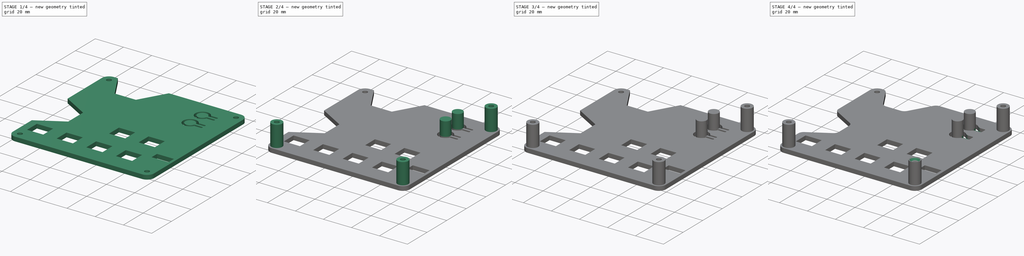
[diagram: build sequence overview — one tinted view per stage of 4, left to right]
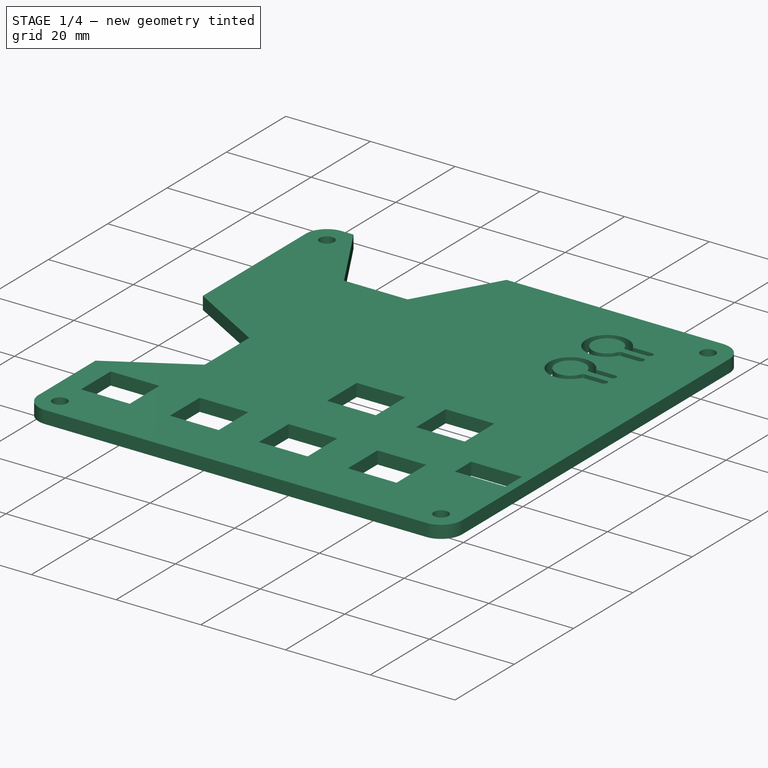
[diagram: stage 1 of 4 — iso view after this stage's code; geometry added in this stage tinted green]
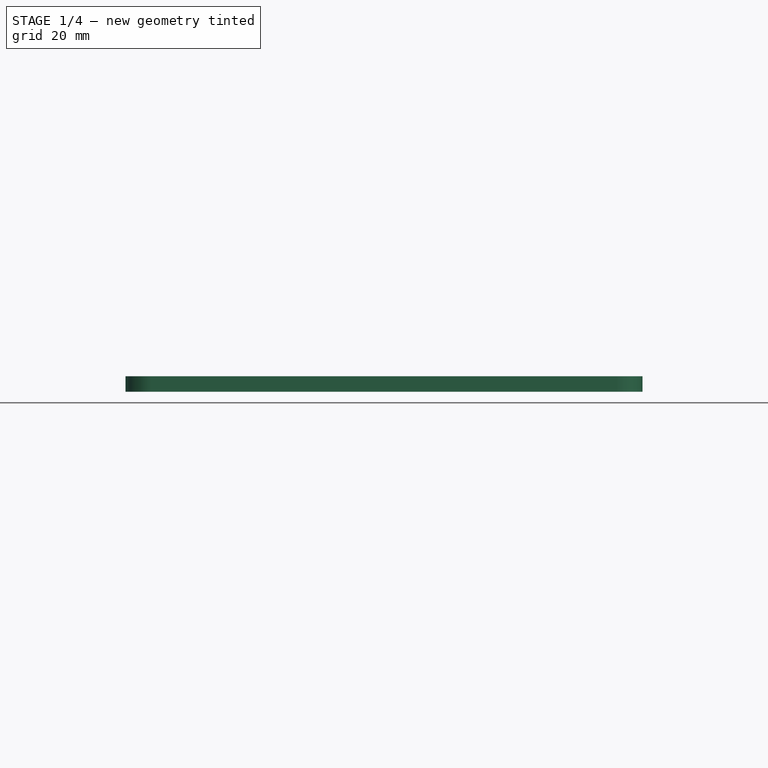
[diagram: stage 1 of 4 — front view after this stage's code; geometry added in this stage tinted green]
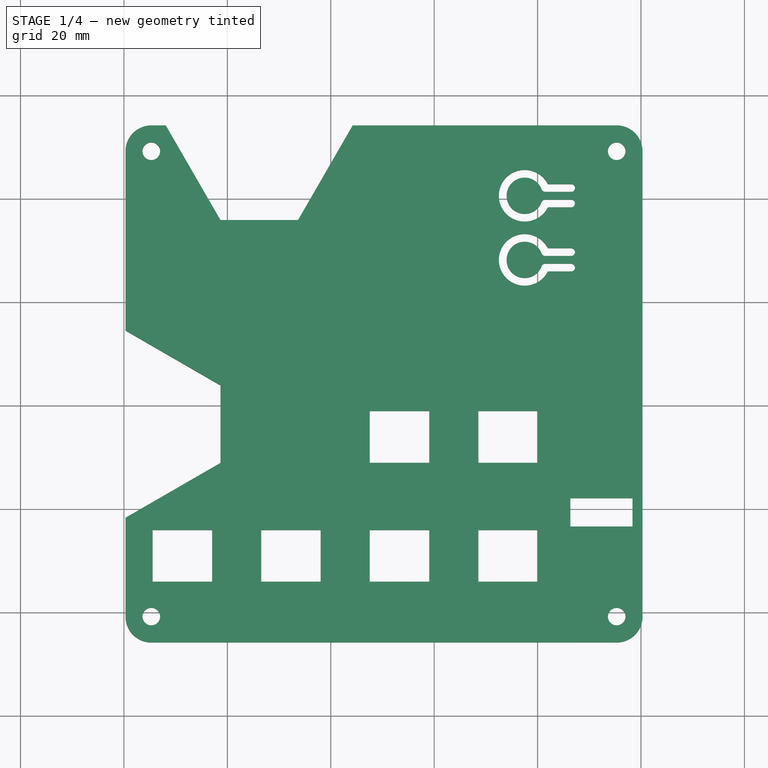
[diagram: stage 1 of 4 — top view after this stage's code; geometry added in this stage tinted green]
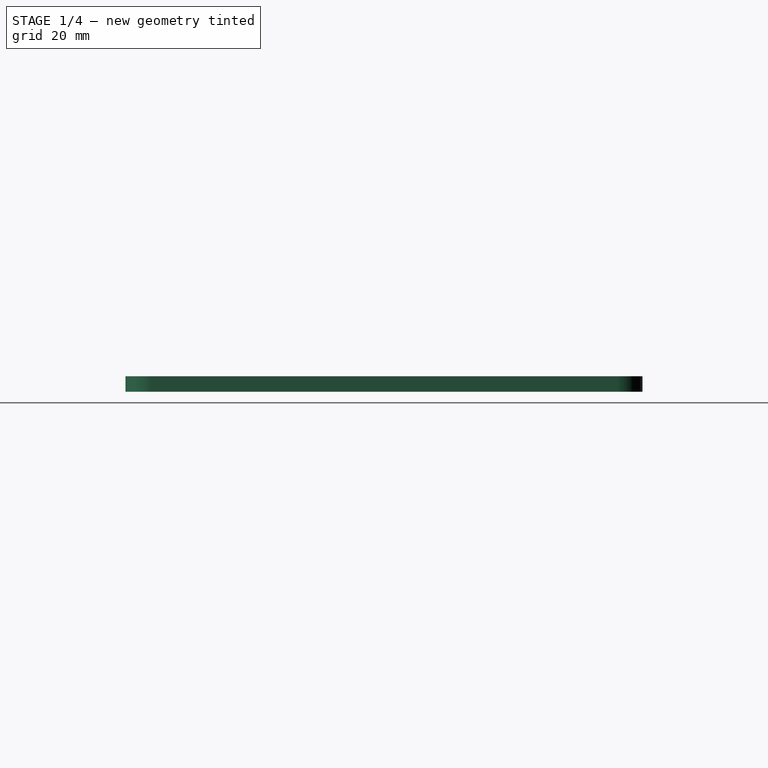
[diagram: stage 1 of 4 — right view after this stage's code; geometry added in this stage tinted green]
FCSTD DOCUMENT  (FreeCAD 0.20R29603 (Git))
Label: mobo-top-cover
License: All rights reserved
LicenseURL: http://en.wikipedia.org/wiki/All_rights_reserved
objects: PartDesign::Pocket×7, Sketcher::SketchObject×6, Part::Part2DObjectPython×5, PartDesign::Plane×3, PartDesign::Pad×3, PartDesign::ShapeBinder×1, PartDesign::Fillet×1, PartDesign::Chamfer×1, PartDesign::Body×1
note: 40 computed .brp shape members not serialized (recipe doc carries the construction recipe); baked Part::Feature solids carry a one-line shape summary decoded from their .brp

FEATURE [PartDesign::ShapeBinder] Copyb_OTS_0020_index_motherboard1_001_003  label="LumenPnP_motherboard1-reference002"
  Placement = pos=(-28.7282,-11.8301,10.999) rot=(1,0,0;3.14159rad)
  TraceSupport = false
FEATURE [PartDesign::Plane] DatumPlane005
  AttachmentOffset = pos=(0,0,15) rot=(0,0,1;0rad)
  Length = 203.827
  MapMode = 5
  Placement = pos=(-28.7282,-11.8301,-5.60096) rot=(1,0,0;3.14159rad)
  ResizeMode = 0
  Support = -> [Copyb_OTS_0020_index_motherboard1_001_003]
  Width = 214.007
FEATURE [Sketcher::SketchObject] Sketch024
  FullyConstrained = false
  MapMode = 5
  Support = -> [XY_Plane003]
  sketch-geometry (46):
    g0: LineSegment StartX=47.8677 StartY=154.594 StartZ=0 EndX=84.46 EndY=154.594 EndZ=0
    g1: LineSegment StartX=84.46 StartY=154.594 StartZ=0 EndX=73.6639 EndY=135.894 EndZ=0
    g2: LineSegment StartX=73.6639 StartY=135.894 StartZ=0 EndX=58.6639 EndY=135.894 EndZ=0
    g3: LineSegment StartX=58.6639 StartY=135.894 StartZ=0 EndX=47.8677 EndY=154.594 EndZ=0
    g4: LineSegment StartX=39.9644 StartY=114.715 StartZ=0 EndX=58.6639 EndY=103.918 EndZ=0
    g5: LineSegment StartX=58.6639 StartY=103.918 StartZ=0 EndX=58.6639 EndY=88.9183 EndZ=0
    g6: LineSegment StartX=58.6639 StartY=88.9183 StartZ=0 EndX=39.9644 EndY=78.1222 EndZ=0
    g7: LineSegment StartX=39.9644 StartY=78.1222 StartZ=0 EndX=39.9644 EndY=114.715 EndZ=0
    g8: GeomPoint X=66.1639 Y=154.594 Z=0
    g9: GeomPoint X=66.1639 Y=135.894 Z=0
    g10: GeomPoint X=39.9644 Y=96.4183 Z=0
    g11: GeomPoint X=58.6639 Y=96.4183 Z=0
    g12: GeomPoint X=117.5 Y=140.6 Z=0
    g13: ArcOfCircle CenterX=117.5 CenterY=140.6 CenterZ=0 NormalX=0 NormalY=0 NormalZ=1 AngleXU=0 Radius=3.5 StartAngle=0.360713 EndAngle=5.92247
    g14: ArcOfCircle CenterX=117.5 CenterY=140.6 CenterZ=0 NormalX=0 NormalY=0 NormalZ=1 AngleXU=0 Radius=5 StartAngle=0.466765 EndAngle=5.81642
    g15: ArcOfCircle CenterX=121.476 CenterY=142.1 CenterZ=0 NormalX=0 NormalY=0 NormalZ=1 AngleXU=0 Radius=0.75 StartAngle=3.50231 EndAngle=4.71239
    g16: LineSegment StartX=117.5 StartY=140.6 StartZ=0 EndX=126.476 EndY=140.6 EndZ=0
    g17: ArcOfCircle CenterX=126.476 CenterY=142.1 CenterZ=0 NormalX=0 NormalY=0 NormalZ=1 AngleXU=0 Radius=0.75 StartAngle=4.71239 EndAngle=7.85398
    g18: LineSegment StartX=121.476 StartY=141.35 StartZ=0 EndX=126.476 EndY=141.35 EndZ=0
    g19: LineSegment StartX=126.476 StartY=142.85 StartZ=0 EndX=121.965 EndY=142.85 EndZ=0
    g20: ArcOfCircle CenterX=121.476 CenterY=139.1 CenterZ=0 NormalX=0 NormalY=0 NormalZ=1 AngleXU=0 Radius=0.75 StartAngle=1.5708 EndAngle=2.78088
    g21: ArcOfCircle CenterX=126.476 CenterY=139.1 CenterZ=0 NormalX=0 NormalY=0 NormalZ=1 AngleXU=0 Radius=0.75 StartAngle=4.71239 EndAngle=7.85398
    g22: LineSegment StartX=121.965 StartY=138.35 StartZ=0 EndX=126.476 EndY=138.35 EndZ=0
    g23: LineSegment StartX=126.476 StartY=139.85 StartZ=0 EndX=121.476 EndY=139.85 EndZ=0
    g24: GeomPoint X=117.5 Y=144.1 Z=0
    g25: GeomPoint X=117.5 Y=145.6 Z=0
    g26: LineSegment StartX=117.5 StartY=145.6 StartZ=0 EndX=117.5 EndY=144.1 EndZ=0
    g27: LineSegment StartX=126.476 StartY=141.35 StartZ=0 EndX=126.476 EndY=142.85 EndZ=0
    g28: LineSegment StartX=126.476 StartY=139.85 StartZ=0 EndX=126.476 EndY=141.35 EndZ=0
    g29: GeomPoint X=117.5 Y=128.2 Z=0
    g30: ArcOfCircle CenterX=117.5 CenterY=128.2 CenterZ=0 NormalX=0 NormalY=0 NormalZ=1 AngleXU=0 Radius=3.5 StartAngle=0.360713 EndAngle=5.92247
    g31: ArcOfCircle CenterX=117.5 CenterY=128.2 CenterZ=0 NormalX=0 NormalY=0 NormalZ=1 AngleXU=0 Radius=5 StartAngle=0.466765 EndAngle=5.81642
    g32: ArcOfCircle CenterX=121.476 CenterY=129.7 CenterZ=0 NormalX=0 NormalY=0 NormalZ=1 AngleXU=0 Radius=0.75 StartAngle=3.50231 EndAngle=4.71239
    g33: LineSegment StartX=117.5 StartY=128.2 StartZ=0 EndX=126.476 EndY=128.2 EndZ=0
    g34: ArcOfCircle CenterX=126.476 CenterY=129.7 CenterZ=0 NormalX=0 NormalY=0 NormalZ=1 AngleXU=0 Radius=0.75 StartAngle=4.71239 EndAngle=7.85398
    g35: LineSegment StartX=121.476 StartY=128.95 StartZ=0 EndX=126.476 EndY=128.95 EndZ=0
    g36: LineSegment StartX=126.476 StartY=130.45 StartZ=0 EndX=121.965 EndY=130.45 EndZ=0
    g37: ArcOfCircle CenterX=121.476 CenterY=126.7 CenterZ=0 NormalX=0 NormalY=0 NormalZ=1 AngleXU=0 Radius=0.75 StartAngle=1.5708 EndAngle=2.78088
    g38: ArcOfCircle CenterX=126.476 CenterY=126.7 CenterZ=0 NormalX=0 NormalY=0 NormalZ=1 AngleXU=0 Radius=0.75 StartAngle=4.71239 EndAngle=7.85398
    g39: LineSegment StartX=121.965 StartY=125.95 StartZ=0 EndX=126.476 EndY=125.95 EndZ=0
    g40: LineSegment StartX=126.476 StartY=127.45 StartZ=0 EndX=121.476 EndY=127.45 EndZ=0
    g41: GeomPoint X=117.5 Y=131.7 Z=0
    g42: GeomPoint X=117.5 Y=133.2 Z=0
    g43: LineSegment StartX=117.5 StartY=133.2 StartZ=0 EndX=117.5 EndY=131.7 EndZ=0
    g44: LineSegment StartX=126.476 StartY=128.95 StartZ=0 EndX=126.476 EndY=130.45 EndZ=0
    g45: LineSegment StartX=126.476 StartY=127.45 StartZ=0 EndX=126.476 EndY=128.95 EndZ=0
  constraints (108):
    c: Coincident(g0,g1)
    c: Coincident(g1,g2)
    c: Coincident(g2,g3)
    c: Coincident(g3,g0)
    c: Horizontal(g0)
    c: Horizontal(g2)
    c: Coincident(g4,g5)
    c: Coincident(g5,g6)
    c: Coincident(g6,g7)
    c: Coincident(g7,g4)
    c: Vertical(g5)
    c: Vertical(g7)
    c: Symmetric(g0,g0,g8)
    c: Symmetric(g2,g2,g9)
    c: Vertical(g8,g9)
    c: Symmetric(g5,g5,g11)
    c: Symmetric(g7,g7,g10)
    c: Horizontal(g10,g11)
    c: Equal(g4,g3)
    c: Equal(g5,g2)
    c: Angle(g4,g5) = 2.0944
    c: Angle(g2,g3) = 2.0944
    c: DistanceY(g5,g5) = 15
    c: Vertical(g4,g2)
    c: Coincident(g13,g12)
    c: Diameter(g13) = 7
    c: Tangent(g13,g15) = 1.5708
    c: Coincident(g16,g12)
    c: Diameter(g14) = 10
    c: Tangent(g18,g17) = -1.5708
    c: Tangent(g17,g19) = -1.5708
    c: Horizontal(g18)
    c: Tangent(g22,g21) = -1.5708
    c: Tangent(g21,g23) = -1.5708
    c: Tangent(g23,g20) = -1.5708
    c: Equal(g20,g21)
    c: Horizontal(g22)
    c: Vertical(g21,g17)
    c: Coincident(g14,g22)
    c: Coincident(g19,g14)
    c: Symmetric(g14,g14,g16)
    c: Horizontal(g23)
    c: Coincident(g18,g15)
    c: Distance(g17,g15) = 5
    c: PointOnObject(g24,g13)
    c: PointOnObject(g25,g14)
    c: Vertical(g24,g12)
    c: Vertical(g25,g24)
    c: Coincident(g24,g26)
    c: Coincident(g26,g25)
    c: Coincident(g27,g17)
    c: Coincident(g27,g17)
    c: Equal(g27,g26)
    c: Horizontal(g19)
    c: Coincident(g14,g12)
    c: Tangent(g20,g13) = 1.5708
    c: Equal(g21,g17)
    c: Vertical(g20,g15)
    c: Vertical(g20,g15)
    c: Coincident(g28,g21)
    c: Coincident(g28,g27)
    c: Equal(g28,g27)
    c: Vertical(g13,g13)
    c: DistanceY(g-1,g12) = 140.6
    c: DistanceX(g-1,g12) = 117.5
    c: PointOnObject(g16,g28)
    c: Coincident(g30,g29)
    c: Diameter(g30) = 7
    c: Tangent(g30,g32) = 1.5708
    c: Coincident(g33,g29)
    c: Diameter(g31) = 10
    c: Tangent(g35,g34) = -1.5708
    c: Tangent(g34,g36) = -1.5708
    c: Horizontal(g35)
    c: Tangent(g39,g38) = -1.5708
    c: Tangent(g38,g40) = -1.5708
    c: Tangent(g40,g37) = -1.5708
    c: Equal(g37,g38)
    c: Horizontal(g39)
    c: Vertical(g38,g34)
    c: Coincident(g31,g39)
    c: Coincident(g36,g31)
    c: Symmetric(g31,g31,g33)
    c: Horizontal(g40)
    c: Coincident(g35,g32)
    c: Distance(g34,g32) = 5
    c: PointOnObject(g41,g30)
    c: PointOnObject(g42,g31)
    c: Vertical(g41,g29)
    c: Vertical(g42,g41)
    c: Coincident(g41,g43)
    c: Coincident(g43,g42)
    c: Coincident(g44,g34)
    c: Coincident(g44,g34)
    c: Equal(g44,g43)
    c: Horizontal(g36)
    c: Coincident(g31,g29)
    c: Tangent(g37,g30) = 1.5708
    c: Equal(g38,g34)
    c: Vertical(g37,g32)
    c: Vertical(g37,g32)
    c: Coincident(g45,g38)
    c: Coincident(g45,g44)
    c: Equal(g45,g44)
    c: Vertical(g30,g30)
    c: PointOnObject(g33,g45)
    c: Vertical(g12,g29)
    c: DistanceY(g29,g12) = 12.4
FEATURE [Sketcher::SketchObject] Sketch026
  ExternalGeometry = -> [Copyb_OTS_0020_index_motherboard1_001_003]
  FullyConstrained = true
  MapMode = 5
  Placement = pos=(-28.7282,-11.8301,-5.60096) rot=(1,0,0;3.14159rad)
  Support = -> [DatumPlane005]
  sketch-geometry (12):
    g0: LineSegment StartX=74.02 StartY=-166.03 StartZ=0 EndX=164.02 EndY=-166.03 EndZ=0
    g1: LineSegment StartX=169.02 StartY=-161.03 StartZ=0 EndX=169.02 EndY=-71.03 EndZ=0
    g2: LineSegment StartX=164.02 StartY=-66.03 StartZ=0 EndX=74.02 EndY=-66.03 EndZ=0
    g3: LineSegment StartX=69.02 StartY=-71.03 StartZ=0 EndX=69.02 EndY=-161.03 EndZ=0
    g4: ArcOfCircle CenterX=164.02 CenterY=-71.03 CenterZ=0 NormalX=0 NormalY=0 NormalZ=1 AngleXU=0 Radius=5 StartAngle=3e-16 EndAngle=1.5708
    g5: ArcOfCircle CenterX=74.02 CenterY=-71.03 CenterZ=0 NormalX=0 NormalY=0 NormalZ=1 AngleXU=0 Radius=5 StartAngle=1.5708 EndAngle=3.14159
    g6: ArcOfCircle CenterX=74.02 CenterY=-161.03 CenterZ=0 NormalX=0 NormalY=0 NormalZ=1 AngleXU=0 Radius=5 StartAngle=3.14159 EndAngle=4.71239
    g7: ArcOfCircle CenterX=164.02 CenterY=-161.03 CenterZ=0 NormalX=0 NormalY=0 NormalZ=1 AngleXU=0 Radius=5 StartAngle=4.71239 EndAngle=6.28319
    g8: Circle CenterX=74.02 CenterY=-161.03 CenterZ=0 NormalX=0 NormalY=0 NormalZ=1 AngleXU=0 Radius=1.7
    g9: Circle CenterX=164.02 CenterY=-71.03 CenterZ=0 NormalX=0 NormalY=0 NormalZ=1 AngleXU=0 Radius=1.7
    g10: Circle CenterX=164.02 CenterY=-161.03 CenterZ=0 NormalX=0 NormalY=0 NormalZ=1 AngleXU=0 Radius=1.7
    g11: Circle CenterX=74.02 CenterY=-71.03 CenterZ=0 NormalX=0 NormalY=0 NormalZ=1 AngleXU=0 Radius=1.7
  constraints (28):
    c: Horizontal(g0)
    c: Horizontal(g2)
    c: Vertical(g1)
    c: Vertical(g3)
    c: Equal(g3,g2)
    c: Tangent(g2,g4) = -1.5708
    c: Tangent(g1,g4) = -1.5708
    c: Tangent(g3,g5) = -1.5708
    c: Tangent(g2,g5) = -1.5708
    c: Tangent(g0,g6) = -1.5708
    c: Tangent(g3,g6) = -1.5708
    c: Tangent(g0,g7) = -1.5708
    c: Tangent(g1,g7) = -1.5708
    c: Equal(g7,g4)
    c: Equal(g4,g5)
    c: Equal(g5,g6)
    c: DistanceY(g0,g2) = 100
    c: Diameter(g5) = 10
    c: Coincident(g8,g6)
    c: Coincident(g9,g4)
    c: Distance(g6,g7) = 90
    c: Equal(g9,g8)
    c: Diameter(g9) = 3.4
    c: Coincident(g3,g-3)
    c: Coincident(g10,g7)
    c: Coincident(g11,g5)
    c: Equal(g11,g10)
    c: Equal(g10,g9)
FEATURE [PartDesign::Pad] Pad005  label="Outer Boundary"
  Direction = (1,1,1)
  Length = 3
  Length2 = 100
  Placement = pos=(-28.7282,-11.8301,-5.60096) rot=(1,0,0;3.14159rad)
  Profile = -> Sketch026
  Type = 0
FEATURE [Sketcher::SketchObject] Sketch025
  AttachmentOffset = pos=(38,52,-5.75) rot=(0,0,1;0rad)
  ExternalGeometry = -> [Pad005]
  FullyConstrained = true
  MapMode = 5
  Placement = pos=(38,52,-5.75) rot=(0,0,1;0rad)
  Support = -> [XY_Plane003]
  sketch-geometry (89):
    g0: LineSegment StartX=7.54179 StartY=23.9499 StartZ=0 EndX=19.0418 EndY=23.9499 EndZ=0
    g1: LineSegment StartX=19.0418 StartY=23.9499 StartZ=0 EndX=19.0418 EndY=13.9499 EndZ=0
    g2: LineSegment StartX=19.0418 StartY=13.9499 StartZ=0 EndX=7.54179 EndY=13.9499 EndZ=0
    g3: LineSegment StartX=7.54179 StartY=13.9499 StartZ=0 EndX=7.54179 EndY=23.9499 EndZ=0
    g4: LineSegment StartX=28.5418 StartY=23.9499 StartZ=0 EndX=40.0418 EndY=23.9499 EndZ=0
    g5: LineSegment StartX=40.0418 StartY=23.9499 StartZ=0 EndX=40.0418 EndY=13.9499 EndZ=0
    g6: LineSegment StartX=40.0418 StartY=13.9499 StartZ=0 EndX=28.5418 EndY=13.9499 EndZ=0
    g7: LineSegment StartX=28.5418 StartY=13.9499 StartZ=0 EndX=28.5418 EndY=23.9499 EndZ=0
    g8: LineSegment StartX=49.5418 StartY=23.9499 StartZ=0 EndX=61.0418 EndY=23.9499 EndZ=0
    g9: LineSegment StartX=61.0418 StartY=23.9499 StartZ=0 EndX=61.0418 EndY=13.9499 EndZ=0
    g10: LineSegment StartX=61.0418 StartY=13.9499 StartZ=0 EndX=49.5418 EndY=13.9499 EndZ=0
    g11: LineSegment StartX=49.5418 StartY=13.9499 StartZ=0 EndX=49.5418 EndY=23.9499 EndZ=0
    g12: LineSegment StartX=70.5418 StartY=23.9499 StartZ=0 EndX=82.0418 EndY=23.9499 EndZ=0
    g13: LineSegment StartX=82.0418 StartY=23.9499 StartZ=0 EndX=82.0418 EndY=13.9499 EndZ=0
    g14: LineSegment StartX=82.0418 StartY=13.9499 StartZ=0 EndX=70.5418 EndY=13.9499 EndZ=0
    g15: LineSegment StartX=70.5418 StartY=13.9499 StartZ=0 EndX=70.5418 EndY=23.9499 EndZ=0
    g16: LineSegment StartX=49.5418 StartY=46.9499 StartZ=0 EndX=61.0418 EndY=46.9499 EndZ=0
    g17: LineSegment StartX=61.0418 StartY=46.9499 StartZ=0 EndX=61.0418 EndY=36.9499 EndZ=0
    g18: LineSegment StartX=61.0418 StartY=36.9499 StartZ=0 EndX=49.5418 EndY=36.9499 EndZ=0
    g19: LineSegment StartX=49.5418 StartY=36.9499 StartZ=0 EndX=49.5418 EndY=46.9499 EndZ=0
    g20: LineSegment StartX=70.5418 StartY=46.9499 StartZ=0 EndX=82.0418 EndY=46.9499 EndZ=0
    g21: LineSegment StartX=82.0418 StartY=46.9499 StartZ=0 EndX=82.0418 EndY=36.9499 EndZ=0
    g22: LineSegment StartX=82.0418 StartY=36.9499 StartZ=0 EndX=70.5418 EndY=36.9499 EndZ=0
    g23: LineSegment StartX=70.5418 StartY=36.9499 StartZ=0 EndX=70.5418 EndY=46.9499 EndZ=0
    g24: LineSegment StartX=40.0418 StartY=23.9499 StartZ=0 EndX=49.5418 EndY=23.9499 EndZ=0
    g25: LineSegment StartX=19.0418 StartY=23.9499 StartZ=0 EndX=28.5418 EndY=23.9499 EndZ=0
    g26: LineSegment StartX=61.0418 StartY=23.9499 StartZ=0 EndX=70.5418 EndY=23.9499 EndZ=0
    g27: LineSegment StartX=7.54179 StartY=23.9499 StartZ=0 EndX=19.0418 EndY=13.9499 EndZ=0
    g28: LineSegment StartX=28.5418 StartY=23.9499 StartZ=0 EndX=40.0418 EndY=13.9499 EndZ=0
    g29: GeomPoint X=13.2918 Y=18.9499 Z=0
    g30: GeomPoint X=34.2918 Y=18.9499 Z=0
    g31: LineSegment StartX=13.2918 StartY=18.9499 StartZ=0 EndX=17.7918 EndY=18.9499 EndZ=0
    g32: LineSegment StartX=34.2918 StartY=18.9499 StartZ=0 EndX=29.7918 EndY=18.9499 EndZ=0
    g33: LineSegment StartX=70.5418 StartY=36.9499 StartZ=0 EndX=82.0418 EndY=46.9499 EndZ=0
    g34: LineSegment StartX=70.5418 StartY=13.9499 StartZ=0 EndX=82.0418 EndY=23.9499 EndZ=0
    g35: LineSegment StartX=76.2918 StartY=18.9499 StartZ=0 EndX=76.2918 EndY=23.4499 EndZ=0
    g36: LineSegment StartX=76.2918 StartY=41.9499 StartZ=0 EndX=76.2918 EndY=37.4499 EndZ=0
    g37: LineSegment StartX=88.3418 StartY=24.5999 StartZ=0 EndX=100.342 EndY=24.5999 EndZ=0
    g38: LineSegment StartX=100.342 StartY=24.5999 StartZ=0 EndX=100.342 EndY=30.0999 EndZ=0
    g39: LineSegment StartX=100.342 StartY=30.0999 StartZ=0 EndX=88.3418 EndY=30.0999 EndZ=0
    g40: LineSegment StartX=88.3418 StartY=30.0999 StartZ=0 EndX=88.3418 EndY=24.5999 EndZ=0
    g41: ArcOfCircle CenterX=4.04179 CenterY=22.6399 CenterZ=0 NormalX=0 NormalY=0 NormalZ=1 AngleXU=0 Radius=0.75 StartAngle=-9e-16 EndAngle=3.14159
    g42: ArcOfCircle CenterX=4.04179 CenterY=20.0999 CenterZ=0 NormalX=0 NormalY=0 NormalZ=1 AngleXU=0 Radius=0.75 StartAngle=3.14159 EndAngle=6.28319
    g43: LineSegment StartX=3.29179 StartY=22.6399 StartZ=0 EndX=3.29179 EndY=20.0999 EndZ=0
    g44: LineSegment StartX=4.79179 StartY=22.6399 StartZ=0 EndX=4.79179 EndY=20.0999 EndZ=0
    g45: ArcOfCircle CenterX=25.0418 CenterY=20.0999 CenterZ=0 NormalX=0 NormalY=0 NormalZ=1 AngleXU=0 Radius=0.75 StartAngle=3.14159 EndAngle=6.28319
    g46: ArcOfCircle CenterX=25.0418 CenterY=22.6399 CenterZ=0 NormalX=0 NormalY=0 NormalZ=1 AngleXU=0 Radius=0.75 StartAngle=-1.8e-15 EndAngle=3.14159
    g47: LineSegment StartX=25.7918 StartY=20.0999 StartZ=0 EndX=25.7918 EndY=22.6399 EndZ=0
    g48: LineSegment StartX=24.2918 StartY=20.0999 StartZ=0 EndX=24.2918 EndY=22.6399 EndZ=0
    g49: ArcOfCircle CenterX=46.0418 CenterY=20.0999 CenterZ=0 NormalX=0 NormalY=0 NormalZ=1 AngleXU=0 Radius=0.75 StartAngle=3.14159 EndAngle=6.28319
    g50: ArcOfCircle CenterX=46.0418 CenterY=22.6399 CenterZ=0 NormalX=0 NormalY=0 NormalZ=1 AngleXU=0 Radius=0.75 StartAngle=1.6e-15 EndAngle=3.14159
    g51: LineSegment StartX=46.7918 StartY=20.0999 StartZ=0 EndX=46.7918 EndY=22.6399 EndZ=0
    g52: LineSegment StartX=45.2918 StartY=20.0999 StartZ=0 EndX=45.2918 EndY=22.6399 EndZ=0
    g53: ArcOfCircle CenterX=67.0418 CenterY=22.6399 CenterZ=0 NormalX=0 NormalY=0 NormalZ=1 AngleXU=0 Radius=0.75 StartAngle=-9e-16 EndAngle=3.14159
    g54: ArcOfCircle CenterX=67.0418 CenterY=20.0999 CenterZ=0 NormalX=0 NormalY=0 NormalZ=1 AngleXU=0 Radius=0.75 StartAngle=3.14159 EndAngle=6.28319
    g55: LineSegment StartX=66.2918 StartY=22.6399 StartZ=0 EndX=66.2918 EndY=20.0999 EndZ=0
    g56: LineSegment StartX=67.7918 StartY=22.6399 StartZ=0 EndX=67.7918 EndY=20.0999 EndZ=0
    g57: ArcOfCircle CenterX=67.0418 CenterY=43.0999 CenterZ=0 NormalX=0 NormalY=0 NormalZ=1 AngleXU=0 Radius=0.75 StartAngle=3.14159 EndAngle=6.28319
    g58: ArcOfCircle CenterX=67.0418 CenterY=45.6399 CenterZ=0 NormalX=0 NormalY=0 NormalZ=1 AngleXU=0 Radius=0.75 StartAngle=4.5e-15 EndAngle=3.14159
    g59: LineSegment StartX=67.7918 StartY=43.0999 StartZ=0 EndX=67.7918 EndY=45.6399 EndZ=0
    g60: LineSegment StartX=66.2918 StartY=43.0999 StartZ=0 EndX=66.2918 EndY=45.6399 EndZ=0
    g61: ArcOfCircle CenterX=46.0418 CenterY=43.0999 CenterZ=0 NormalX=0 NormalY=0 NormalZ=1 AngleXU=0 Radius=0.75 StartAngle=3.14159 EndAngle=6.28319
    g62: ArcOfCircle CenterX=46.0418 CenterY=45.6399 CenterZ=0 NormalX=0 NormalY=0 NormalZ=1 AngleXU=0 Radius=0.75 StartAngle=2e-16 EndAngle=3.14159
    g63: LineSegment StartX=46.7918 StartY=43.0999 StartZ=0 EndX=46.7918 EndY=45.6399 EndZ=0
    g64: LineSegment StartX=45.2918 StartY=43.0999 StartZ=0 EndX=45.2918 EndY=45.6399 EndZ=0
    g65: ArcOfCircle CenterX=74.6618 CenterY=25.1799 CenterZ=0 NormalX=0 NormalY=0 NormalZ=1 AngleXU=0 Radius=0.75 StartAngle=1.5708 EndAngle=4.71239
    g66: ArcOfCircle CenterX=77.2018 CenterY=25.1799 CenterZ=0 NormalX=0 NormalY=0 NormalZ=1 AngleXU=0 Radius=0.75 StartAngle=4.71239 EndAngle=7.85398
    g67: LineSegment StartX=74.6618 StartY=24.4299 StartZ=0 EndX=77.2018 EndY=24.4299 EndZ=0
    g68: LineSegment StartX=74.6618 StartY=25.9299 StartZ=0 EndX=77.2018 EndY=25.9299 EndZ=0
    g69: ArcOfCircle CenterX=53.6618 CenterY=25.1799 CenterZ=0 NormalX=0 NormalY=0 NormalZ=1 AngleXU=0 Radius=0.75 StartAngle=1.5708 EndAngle=4.71239
    g70: ArcOfCircle CenterX=56.2018 CenterY=25.1799 CenterZ=0 NormalX=0 NormalY=0 NormalZ=1 AngleXU=0 Radius=0.75 StartAngle=4.71239 EndAngle=7.85398
    g71: LineSegment StartX=53.6618 StartY=24.4299 StartZ=0 EndX=56.2018 EndY=24.4299 EndZ=0
    g72: LineSegment StartX=53.6618 StartY=25.9299 StartZ=0 EndX=56.2018 EndY=25.9299 EndZ=0
    g73: ArcOfCircle CenterX=53.6618 CenterY=48.1799 CenterZ=0 NormalX=0 NormalY=0 NormalZ=1 AngleXU=0 Radius=0.75 StartAngle=1.5708 EndAngle=4.71239
    g74: ArcOfCircle CenterX=56.2018 CenterY=48.1799 CenterZ=0 NormalX=0 NormalY=0 NormalZ=1 AngleXU=0 Radius=0.75 StartAngle=4.71239 EndAngle=7.85398
    g75: LineSegment StartX=53.6618 StartY=47.4299 StartZ=0 EndX=56.2018 EndY=47.4299 EndZ=0
    g76: LineSegment StartX=53.6618 StartY=48.9299 StartZ=0 EndX=56.2018 EndY=48.9299 EndZ=0
    g77: ArcOfCircle CenterX=74.6618 CenterY=48.1799 CenterZ=0 NormalX=0 NormalY=0 NormalZ=1 AngleXU=0 Radius=0.75 StartAngle=1.5708 EndAngle=4.71239
    g78: ArcOfCircle CenterX=77.2018 CenterY=48.1799 CenterZ=0 NormalX=0 NormalY=0 NormalZ=1 AngleXU=0 Radius=0.75 StartAngle=4.71239 EndAngle=7.85398
    g79: LineSegment StartX=74.6618 StartY=47.4299 StartZ=0 EndX=77.2018 EndY=47.4299 EndZ=0
    g80: LineSegment StartX=74.6618 StartY=48.9299 StartZ=0 EndX=77.2018 EndY=48.9299 EndZ=0
    g81: ArcOfCircle CenterX=11.6618 CenterY=25.1799 CenterZ=0 NormalX=0 NormalY=0 NormalZ=1 AngleXU=0 Radius=0.75 StartAngle=1.5708 EndAngle=4.71239
    g82: ArcOfCircle CenterX=14.2018 CenterY=25.1799 CenterZ=0 NormalX=0 NormalY=0 NormalZ=1 AngleXU=0 Radius=0.75 StartAngle=4.71239 EndAngle=7.85398
    g83: LineSegment StartX=11.6618 StartY=24.4299 StartZ=0 EndX=14.2018 EndY=24.4299 EndZ=0
    g84: LineSegment StartX=11.6618 StartY=25.9299 StartZ=0 EndX=14.2018 EndY=25.9299 EndZ=0
    g85: ArcOfCircle CenterX=32.6618 CenterY=25.1799 CenterZ=0 NormalX=0 NormalY=0 NormalZ=1 AngleXU=0 Radius=0.75 StartAngle=1.5708 EndAngle=4.71239
    g86: ArcOfCircle CenterX=35.2018 CenterY=25.1799 CenterZ=0 NormalX=0 NormalY=0 NormalZ=1 AngleXU=0 Radius=0.75 StartAngle=4.71239 EndAngle=7.85398
    g87: LineSegment StartX=32.6618 StartY=24.4299 StartZ=0 EndX=35.2018 EndY=24.4299 EndZ=0
    g88: LineSegment StartX=32.6618 StartY=25.9299 StartZ=0 EndX=35.2018 EndY=25.9299 EndZ=0
  constraints (230):
    c: Coincident(g0,g1)
    c: Coincident(g1,g2)
    c: Coincident(g2,g3)
    c: Coincident(g3,g0)
    c: Horizontal(g0)
    c: Horizontal(g2)
    c: Vertical(g1)
    c: Vertical(g3)
    c: Coincident(g4,g5)
    c: Coincident(g5,g6)
    c: Coincident(g6,g7)
    c: Coincident(g7,g4)
    c: Horizontal(g4)
    c: Horizontal(g6)
    c: Vertical(g5)
    c: Vertical(g7)
    c: Coincident(g8,g9)
    c: Coincident(g9,g10)
    c: Coincident(g10,g11)
    c: Coincident(g11,g8)
    c: Horizontal(g8)
    c: Horizontal(g10)
    c: Vertical(g9)
    c: Vertical(g11)
    c: Coincident(g12,g13)
    c: Coincident(g13,g14)
    c: Coincident(g14,g15)
    c: Coincident(g15,g12)
    c: Horizontal(g12)
    c: Horizontal(g14)
    c: Vertical(g13)
    c: Vertical(g15)
    c: Coincident(g16,g17)
    c: Coincident(g17,g18)
    c: Coincident(g18,g19)
    c: Coincident(g19,g16)
    c: Horizontal(g16)
    c: Horizontal(g18)
    c: Vertical(g17)
    c: Vertical(g19)
    c: Coincident(g20,g21)
    c: Coincident(g21,g22)
    c: Coincident(g22,g23)
    c: Coincident(g23,g20)
    c: Horizontal(g20)
    c: Horizontal(g22)
    c: Vertical(g21)
    c: Vertical(g23)
    c: Equal(g1,g5)
    c: Equal(g5,g9)
    c: Equal(g13,g21)
    c: Equal(g21,g17)
    c: Equal(g17,g9)
    c: Equal(g0,g4)
    c: Equal(g8,g4)
    c: Equal(g8,g12)
    c: Equal(g12,g20)
    c: Equal(g20,g16)
    c: PointOnObject(g6,g2)
    c: PointOnObject(g10,g2)
    c: PointOnObject(g14,g2)
    c: PointOnObject(g17,g22)
    c: DistanceX(g2,g2) = 11.5
    c: DistanceY(g1,g1) = 10
    c: PointOnObject(g17,g9)
    c: PointOnObject(g22,g15)
    c: Coincident(g24,g4)
    c: Coincident(g24,g8)
    c: Coincident(g25,g0)
    c: Coincident(g25,g4)
    c: Coincident(g26,g8)
    c: Coincident(g26,g12)
    c: Equal(g25,g24)
    c: Equal(g24,g26)
    c: Symmetric(g27,g27,g29)
    c: Symmetric(g28,g28,g30)
    c: Coincident(g27,g0)
    c: Coincident(g27,g1)
    c: Coincident(g31,g29)
    c: Horizontal(g31)
    c: Coincident(g32,g30)
    c: Horizontal(g32)
    c: Equal(g31,g32)
    c: DistanceX(g31,g31) = 4.5
    c: Coincident(g28,g25)
    c: Coincident(g28,g5)
    c: DistanceX(g31,g32) = 12
    c: Coincident(g33,g22)
    c: Coincident(g33,g20)
    c: Coincident(g34,g14)
    c: Coincident(g34,g12)
    c: Vertical(g35)
    c: Vertical(g36)
    c: Symmetric(g34,g34,g35)
    c: Symmetric(g33,g33,g36)
    c: Equal(g36,g35)
    c: Equal(g35,g31)
    c: DistanceY(g35,g36) = 14
    c: Coincident(g37,g38)
    c: Coincident(g38,g39)
    c: Coincident(g39,g40)
    c: Coincident(g40,g37)
    c: Horizontal(g37)
    c: Horizontal(g39)
    c: Vertical(g38)
    c: Vertical(g40)
    c: DistanceX(g39,g39) = 12
    c: DistanceY(g40,g40) = 5.5
    c: DistanceY(g-3,g2) = 11.75
    c: DistanceX(g-4,g2) = 5.25
    c: DistanceY(g-3,g37) = 22.4
    c: DistanceX(g-3,g37) = 3.05
    c: Tangent(g41,g44) = 1.5708
    c: Tangent(g41,g43) = -1.5708
    c: Tangent(g43,g42) = -1.5708
    c: Tangent(g44,g42) = 1.5708
    c: Vertical(g43)
    c: Equal(g41,g42)
    c: Tangent(g45,g48) = 1.5708
    c: Tangent(g45,g47) = -1.5708
    c: Tangent(g47,g46) = -1.5708
    c: Tangent(g48,g46) = 1.5708
    c: Vertical(g47)
    c: Equal(g45,g46)
    c: Tangent(g49,g52) = 1.5708
    c: Tangent(g49,g51) = -1.5708
    c: Tangent(g51,g50) = -1.5708
    c: Tangent(g52,g50) = 1.5708
    c: Vertical(g51)
    c: Equal(g49,g50)
    c: Tangent(g53,g56) = 1.5708
    c: Tangent(g53,g55) = -1.5708
    c: Tangent(g55,g54) = -1.5708
    c: Tangent(g56,g54) = 1.5708
    c: Vertical(g55)
    c: Equal(g53,g54)
    c: Tangent(g57,g60) = 1.5708
    c: Tangent(g57,g59) = -1.5708
    c: Tangent(g59,g58) = -1.5708
    c: Tangent(g60,g58) = 1.5708
    c: Vertical(g59)
    c: Equal(g57,g58)
    c: Tangent(g61,g64) = 1.5708
    c: Tangent(g61,g63) = -1.5708
    c: Tangent(g63,g62) = -1.5708
    c: Tangent(g64,g62) = 1.5708
    c: Vertical(g63)
    c: Equal(g61,g62)
    c: Tangent(g65,g68) = 1.5708
    c: Tangent(g65,g67) = -1.5708
    c: Tangent(g67,g66) = -1.5708
    c: Tangent(g68,g66) = 1.5708
    c: Horizontal(g67)
    c: Equal(g65,g66)
    c: Tangent(g69,g72) = 1.5708
    c: Tangent(g69,g71) = -1.5708
    c: Tangent(g71,g70) = -1.5708
    c: Tangent(g72,g70) = 1.5708
    c: Horizontal(g71)
    c: Equal(g69,g70)
    c: Tangent(g73,g76) = 1.5708
    c: Tangent(g73,g75) = -1.5708
    c: Tangent(g75,g74) = -1.5708
    c: Tangent(g76,g74) = 1.5708
    c: Horizontal(g75)
    c: Equal(g73,g74)
    c: Tangent(g77,g80) = 1.5708
    c: Tangent(g77,g79) = -1.5708
    c: Tangent(g79,g78) = -1.5708
    c: Tangent(g80,g78) = 1.5708
    c: Horizontal(g79)
    c: Equal(g77,g78)
    c: Equal(g44,g48)
    c: Equal(g48,g52)
    c: Equal(g52,g55)
    c: Equal(g55,g68)
    c: Equal(g68,g72)
    c: Equal(g72,g64)
    c: Equal(g64,g75)
    c: Equal(g75,g60)
    c: Equal(g60,g79)
    c: DistanceY(g42,g41) = 2.54
    c: Equal(g42,g45)
    c: Equal(g45,g49)
    c: Equal(g49,g54)
    c: Equal(g54,g66)
    c: Equal(g66,g70)
    c: Equal(g70,g61)
    c: Equal(g61,g73)
    c: Equal(g73,g57)
    c: Equal(g57,g77)
    c: Tangent(g81,g84) = 1.5708
    c: Tangent(g81,g83) = -1.5708
    c: Tangent(g83,g82) = -1.5708
    c: Tangent(g84,g82) = 1.5708
    c: Horizontal(g83)
    c: Equal(g81,g82)
    c: Tangent(g85,g88) = 1.5708
    c: Tangent(g85,g87) = -1.5708
    c: Tangent(g87,g86) = -1.5708
    c: Tangent(g88,g86) = 1.5708
    c: Horizontal(g87)
    c: Equal(g85,g86)
    c: Equal(g83,g87)
    c: Equal(g87,g44)
    c: Equal(g81,g85)
    c: Equal(g85,g42)
    c: Diameter(g62) = 1.5
    c: DistanceX(g41,g81) = 7.62
    c: DistanceY(g41,g81) = 2.54
    c: Horizontal(g42,g45)
    c: Horizontal(g61,g57)
    c: Horizontal(g73,g77)
    c: DistanceX(g62,g73) = 7.62
    c: DistanceY(g62,g73) = 2.54
    c: DistanceX(g58,g77) = 7.62
    c: DistanceX(g61,g57) = 21
    c: Vertical(g61,g50)
    c: Horizontal(g82,g85)
    c: Horizontal(g69,g65)
    c: Vertical(g57,g53)
    c: Symmetric(g53,g46,g50)
    c: Vertical(g69,g73)
    c: Symmetric(g50,g41,g46)
    c: Symmetric(g69,g81,g85)
    c: Vertical(g77,g65)
    c: DistanceX(g-4,g42) = 1.75  'X offset for slots'
    c: DistanceY(g-3,g42) = 17.9  'slot y offset'
    c: DistanceY(g26,g70) = 0.48  'slot y offset reference'
    c: DistanceY(g16,g74) = 0.48
FEATURE [PartDesign::Pocket] Pocket010  label="Heatsink Cutouts"
  BaseFeature = -> Pad005
  Direction = (0,0,-1)
  Length = 100
  Length2 = 100
  Placement = pos=(-28.7282,-11.8301,-5.60096) rot=(1,0,0;3.14159rad)
  Profile = -> Sketch025
  Reversed = true
  Type = 4
FEATURE [PartDesign::Pocket] Pocket009  label="Tubing Notches"
  BaseFeature = -> Pocket010
  Direction = (0,0,-1)
  Length = 5
  Length2 = 100
  Placement = pos=(-28.7282,-11.8301,-5.60096) rot=(1,0,0;3.14159rad)
  Profile = -> Sketch024
  Type = 1
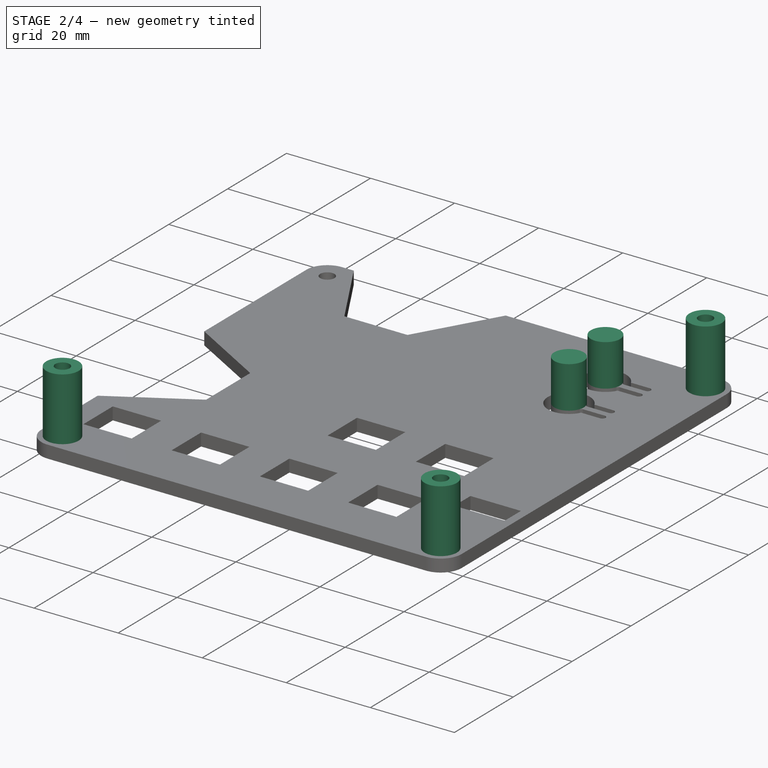
[diagram: stage 2 of 4 — iso view after this stage's code; geometry added in this stage tinted green]
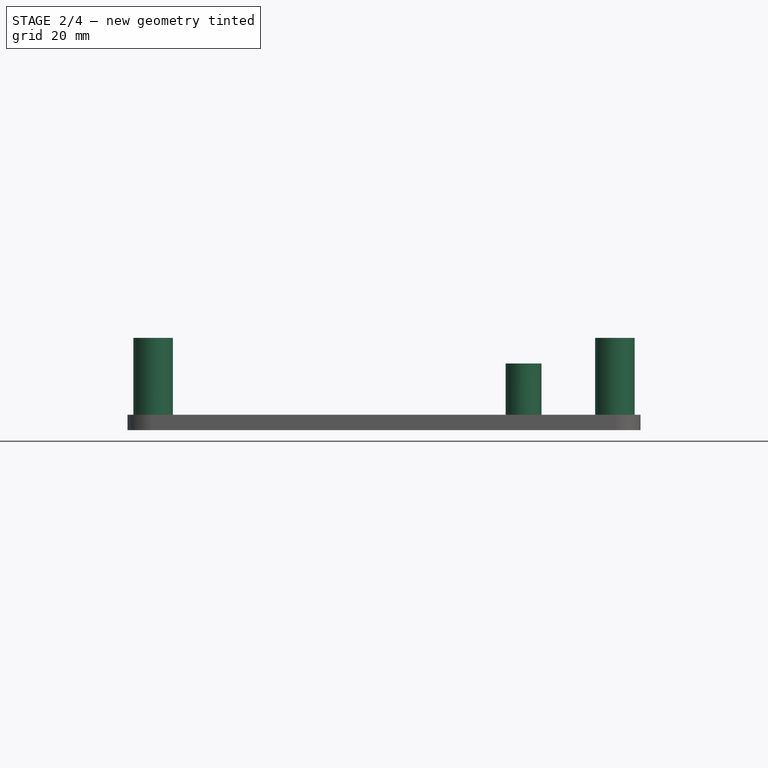
[diagram: stage 2 of 4 — front view after this stage's code; geometry added in this stage tinted green]
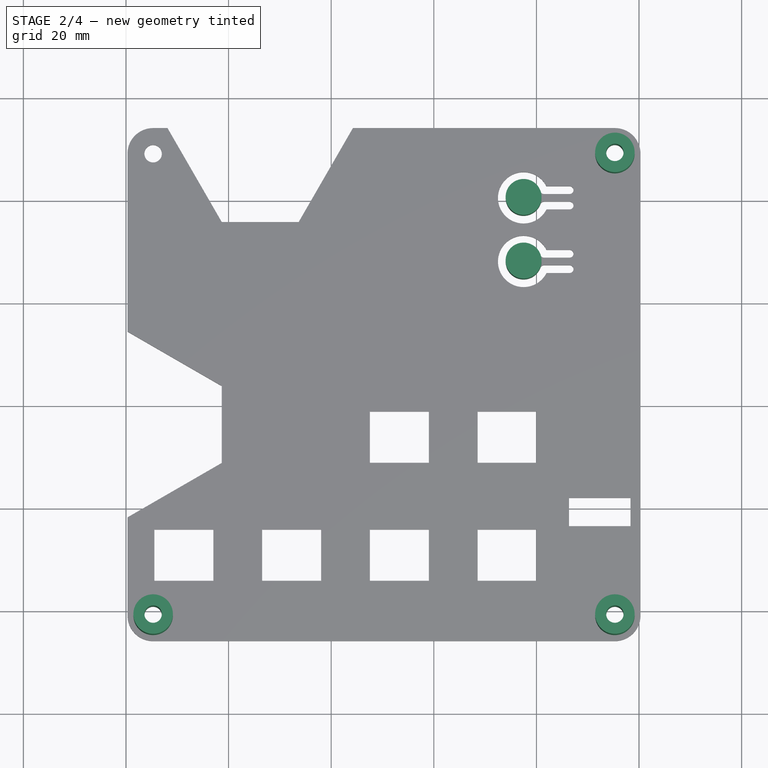
[diagram: stage 2 of 4 — top view after this stage's code; geometry added in this stage tinted green]
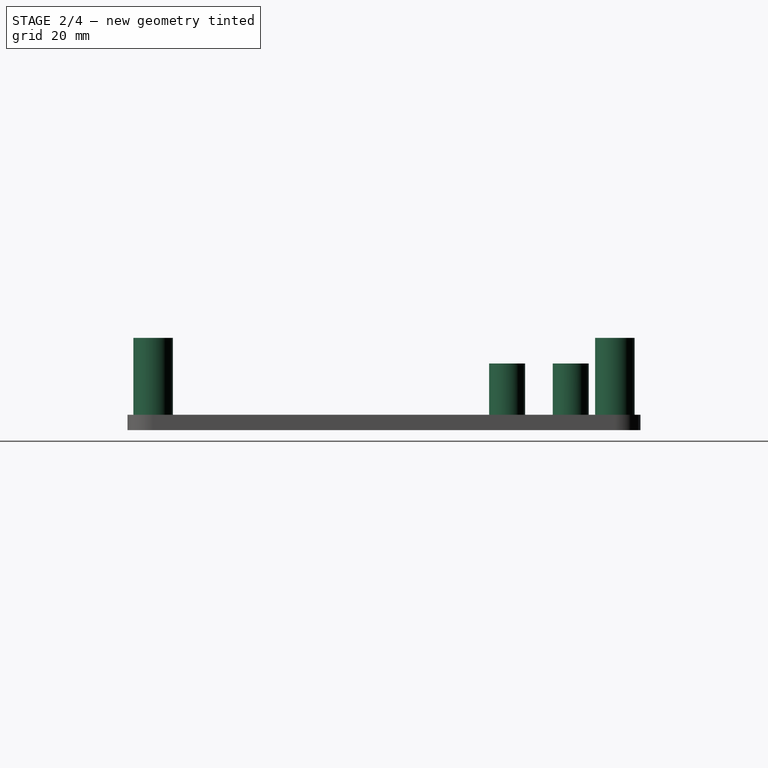
[diagram: stage 2 of 4 — right view after this stage's code; geometry added in this stage tinted green]
FEATURE [PartDesign::Plane] DatumPlane006  label="PrintPlane"
  Length = 203.827
  MapMode = 5
  Placement = pos=(-28.7282,-11.8301,-8.60096) rot=(1,0,0;3.14159rad)
  ResizeMode = 0
  Support = -> [Pocket009]
  Width = 214.007
FEATURE [Sketcher::SketchObject] Sketch
  ExternalGeometry = -> [Pocket009]
  FullyConstrained = true
  MapMode = 5
  Placement = pos=(-28.7282,-11.8301,-5.60096) rot=(0,0,1;0rad)
  Support = -> [Pocket009]
  sketch-geometry (12):
    g0: Circle CenterX=74.02 CenterY=161.03 CenterZ=0 NormalX=0 NormalY=0 NormalZ=1 AngleXU=0 Radius=1.7
    g1: Circle CenterX=164.02 CenterY=161.03 CenterZ=0 NormalX=0 NormalY=0 NormalZ=1 AngleXU=0 Radius=1.7
    g2: Circle CenterX=164.02 CenterY=71.03 CenterZ=0 NormalX=0 NormalY=0 NormalZ=1 AngleXU=0 Radius=1.7
    g3: Circle CenterX=74.02 CenterY=71.03 CenterZ=0 NormalX=0 NormalY=0 NormalZ=1 AngleXU=0 Radius=1.7
    g4: LineSegment StartX=74.02 StartY=71.03 StartZ=0 EndX=164.02 EndY=71.03 EndZ=0
    g5: LineSegment StartX=164.02 StartY=71.03 StartZ=0 EndX=164.02 EndY=161.03 EndZ=0
    g6: LineSegment StartX=164.02 StartY=161.03 StartZ=0 EndX=74.02 EndY=161.03 EndZ=0
    g7: LineSegment StartX=74.02 StartY=161.03 StartZ=0 EndX=74.02 EndY=71.03 EndZ=0
    g8: Circle CenterX=164.02 CenterY=161.03 CenterZ=0 NormalX=0 NormalY=0 NormalZ=1 AngleXU=0 Radius=3.85
    g9: Circle CenterX=164.02 CenterY=71.03 CenterZ=0 NormalX=0 NormalY=0 NormalZ=1 AngleXU=0 Radius=3.85
    g10: Circle CenterX=74.02 CenterY=71.03 CenterZ=0 NormalX=0 NormalY=0 NormalZ=1 AngleXU=0 Radius=3.85
    g11: Circle CenterX=74.02 CenterY=161.03 CenterZ=0 NormalX=0 NormalY=0 NormalZ=1 AngleXU=0 Radius=3.85
  constraints (27):
    c: Horizontal(g3,g2)
    c: Coincident(g4,g5)
    c: Coincident(g5,g6)
    c: Coincident(g6,g7)
    c: Coincident(g7,g4)
    c: Horizontal(g6)
    c: Vertical(g5)
    c: Vertical(g7)
    c: Coincident(g4,g3)
    c: Coincident(g5,g1)
    c: Equal(g6,g7)
    c: Coincident(g0,g6)
    c: Coincident(g2,g4)
    c: Equal(g0,g1)
    c: Equal(g1,g2)
    c: Equal(g2,g3)
    c: DistanceY(g7,g7) = 90
    c: Coincident(g8,g1)
    c: Coincident(g9,g2)
    c: Coincident(g10,g3)
    c: Equal(g11,g10)
    c: Equal(g10,g9)
    c: Equal(g9,g8)
    c: Diameter(g11) = 7.7
    c: Coincident(g11,g6)
    c: Diameter(g0) = 3.4
    c: Coincident(g3,g-4)
FEATURE [PartDesign::Pad] Pad  label="Cylinder Spacers"
  BaseFeature = -> Pocket009
  Direction = (0,-2e-16,1)
  Length = 15
  Length2 = 10
  Placement = pos=(-28.7282,-11.8301,-5.60096) rot=(1,0,0;3.14159rad)
  Profile = -> Sketch
  ReferenceAxis = -> Sketch [N_Axis]
  Type = 0
FEATURE [Sketcher::SketchObject] Sketch027
  FullyConstrained = false
  MapMode = 5
  Placement = pos=(-28.7282,-11.8301,-5.60096) rot=(1,0,0;3.14159rad)
  Support = -> [DatumPlane005]
  sketch-geometry (2):
    g0: Circle CenterX=146.228 CenterY=-152.43 CenterZ=0 NormalX=0 NormalY=0 NormalZ=1 AngleXU=0 Radius=3.5
    g1: Circle CenterX=146.228 CenterY=-140.03 CenterZ=0 NormalX=0 NormalY=0 NormalZ=1 AngleXU=0 Radius=3.5
  constraints (2):
    c: Equal(g1,g0)
    c: Diameter(g0) = 7
FEATURE [PartDesign::Pad] Pad006  label="Button Creation"
  BaseFeature = -> Pad
  Direction = (0,0,-1)
  Length = 10
  Length2 = 10
  Placement = pos=(-28.7282,-11.8301,-5.60096) rot=(1,0,0;3.14159rad)
  Profile = -> Sketch027
  ReferenceAxis = -> Sketch027 [N_Axis]
  Reversed = true
  Type = 0
FEATURE [Part::Part2DObjectPython] ShapeString  # Draft 2D object (typed FeaturePython)
  AttachmentOffset = pos=(120,-141.5,0) rot=(0,0,1;0rad)
  FontFile = <userpath>/Github/lumenpnp/lib/fonts/RobotoMono-VariableFont_weight.ttf
  MakeFace = true
  MapMode = 2
  Placement = pos=(91.2718,129.67,-8.60096) rot=(1,0,0;3.14159rad)
  Size = 6
  String = RESET
  Support = -> [DatumPlane006]
  Tracking = 0
FEATURE [Part::Part2DObjectPython] ShapeString001  # Draft 2D object (typed FeaturePython)
  AttachmentOffset = pos=(122.76,-154.5,0) rot=(0,0,1;0rad)
  FontFile = <userpath>/Github/lumenpnp/lib/fonts/RobotoMono-VariableFont_weight.ttf
  MakeFace = true
  MapMode = 2
  Placement = pos=(94.0318,142.67,-8.60096) rot=(1,0,0;3.14159rad)
  Size = 6
  String = BOOT
  Support = -> [DatumPlane006]
  Tracking = 0
FEATURE [Part::Part2DObjectPython] ShapeString002  # Draft 2D object (typed FeaturePython)
  AttachmentOffset = pos=(80,-133.5,0) rot=(0,0,1;0rad)
  FontFile = <userpath>/Github/lumenpnp/lib/fonts/RobotoMono-VariableFont_weight.ttf
  MakeFace = true
  MapMode = 2
  Placement = pos=(51.2718,121.67,-8.60096) rot=(1,0,0;3.14159rad)
  Size = 16
  String = LumenPnP
  Support = -> [DatumPlane006]
  Tracking = 0
FEATURE [Part::Part2DObjectPython] ShapeString005  # Draft 2D object (typed FeaturePython)
  AttachmentOffset = pos=(80,-133.5,0) rot=(0,0,1;0rad)
  FontFile = <userpath>/Github/lumenpnp/lib/fonts/RobotoMono-VariableFont_weight.ttf
  MakeFace = true
  MapMode = 2
  Placement = pos=(51.2718,121.67,-8.60096) rot=(1,0,0;3.14159rad)
  Size = 16
  String = LumenPnP
  Support = -> [DatumPlane006]
  Tracking = 0
FEATURE [Part::Part2DObjectPython] ShapeString006  # Draft 2D object (typed FeaturePython)
  AttachmentOffset = pos=(117,-164.5,0) rot=(0,0,1;0rad)
  FontFile = <userpath>/Github/lumenpnp/lib/fonts/RobotoMono-VariableFont_weight.ttf
  MakeFace = true
  MapMode = 2
  Placement = pos=(88.2718,152.67,-8.60096) rot=(1,0,0;3.14159rad)
  Size = 7
  String = OPULO.IO
  Support = -> [DatumPlane006]
  Tracking = 0
FEATURE [PartDesign::Pocket] Pocket  label="Reset"
  BaseFeature = -> Pad006
  Direction = (0,-2e-16,1)
  Length = 0.4
  Length2 = 5
  Placement = pos=(-28.7282,-11.8301,-5.60096) rot=(1,0,0;3.14159rad)
  Profile = -> ShapeString
  ReferenceAxis = -> ShapeString [N_Axis]
  Type = 0
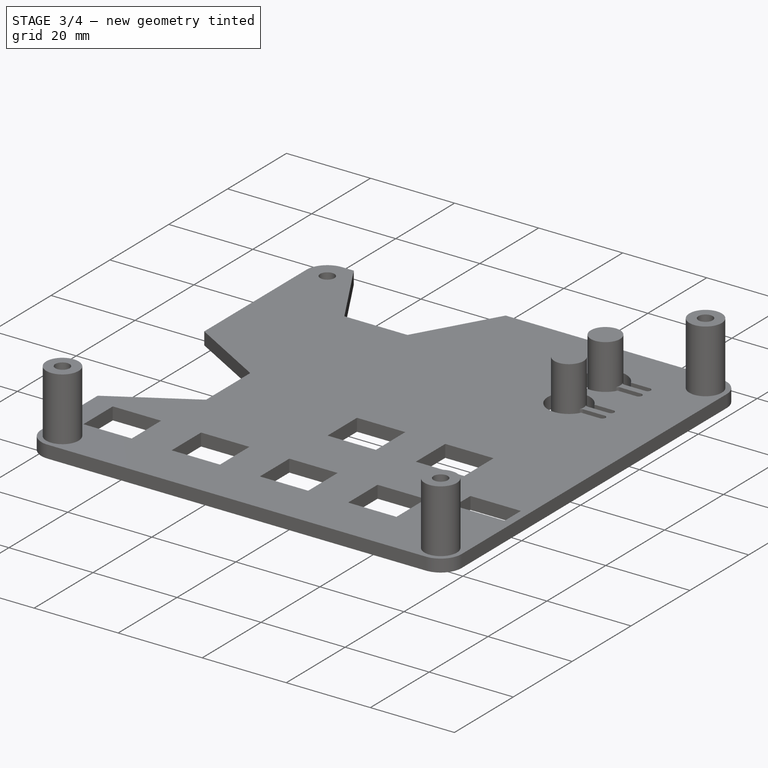
[diagram: stage 3 of 4 — iso view after this stage's code; geometry added in this stage tinted green]
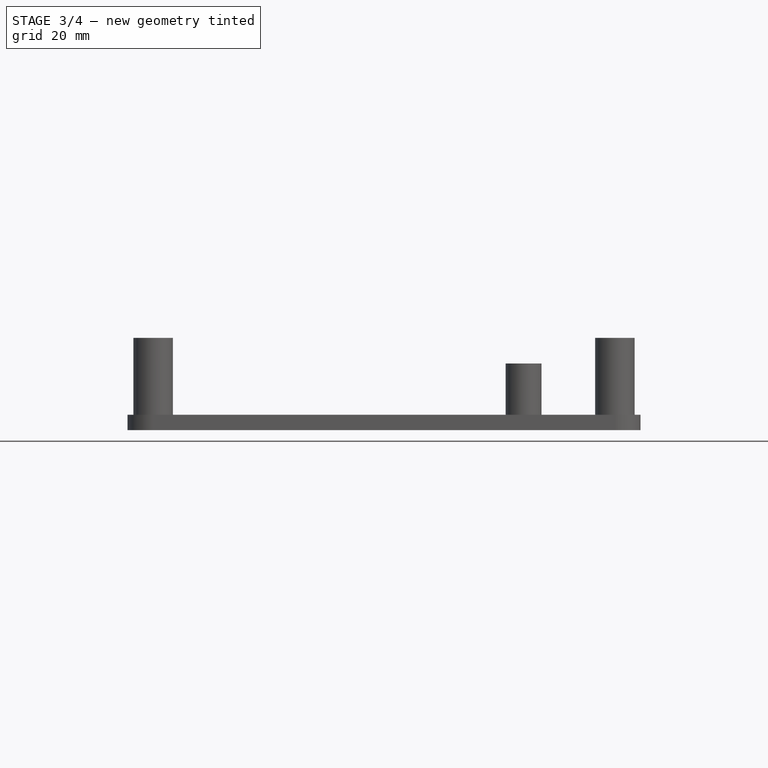
[diagram: stage 3 of 4 — front view after this stage's code; geometry added in this stage tinted green]
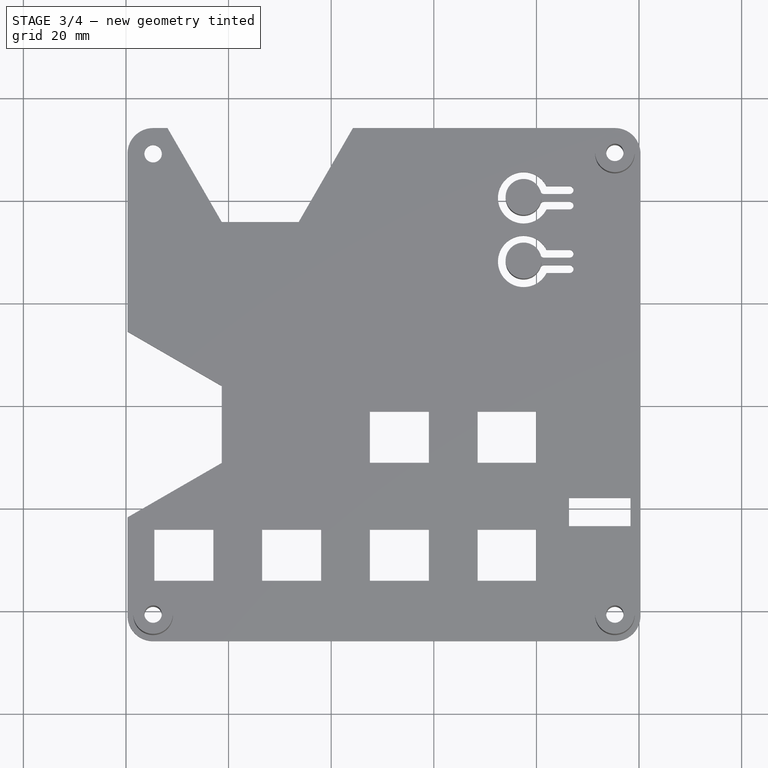
[diagram: stage 3 of 4 — top view after this stage's code; geometry added in this stage tinted green]
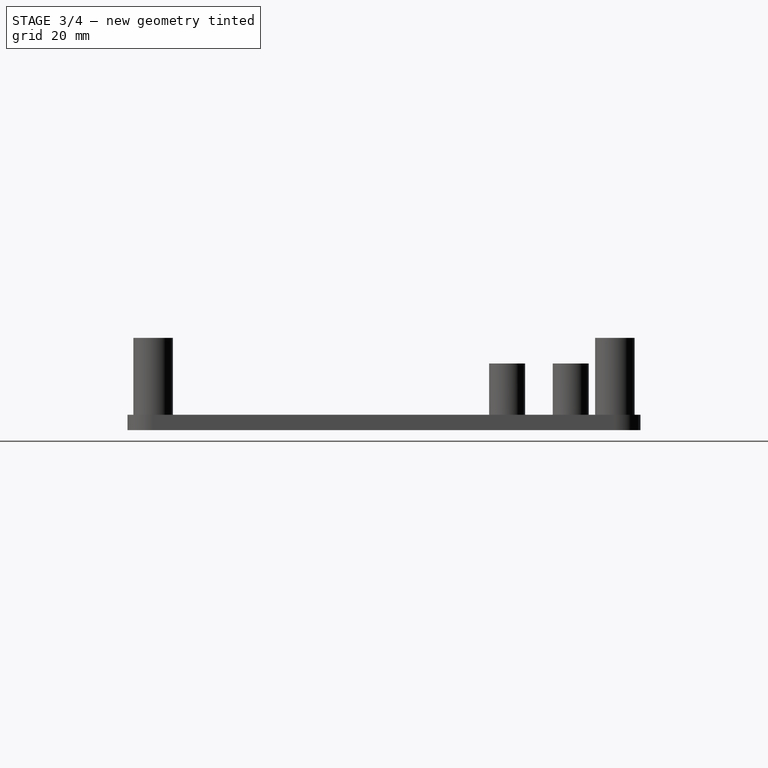
[diagram: stage 3 of 4 — right view after this stage's code; geometry added in this stage tinted green]
FEATURE [PartDesign::Pocket] Pocket011  label="Boot"
  BaseFeature = -> Pocket
  Direction = (0,-2e-16,1)
  Length = 0.4
  Length2 = 5
  Placement = pos=(-28.7282,-11.8301,-5.60096) rot=(1,0,0;3.14159rad)
  Profile = -> ShapeString001
  ReferenceAxis = -> ShapeString001 [N_Axis]
  Type = 0
FEATURE [PartDesign::Pocket] Pocket012  label="Opulo"
  BaseFeature = -> Pocket011
  Direction = (0,-2e-16,1)
  Length = 0.4
  Length2 = 5
  Placement = pos=(-28.7282,-11.8301,-5.60096) rot=(1,0,0;3.14159rad)
  Profile = -> ShapeString006
  ReferenceAxis = -> ShapeString006 [N_Axis]
  Type = 0
FEATURE [PartDesign::Pocket] Pocket013  label="LumenPnP"
  BaseFeature = -> Pocket012
  Direction = (0,-2e-16,1)
  Length = 0.4
  Length2 = 5
  Placement = pos=(-28.7282,-11.8301,-5.60096) rot=(1,0,0;3.14159rad)
  Profile = -> ShapeString005
  ReferenceAxis = -> ShapeString005 [N_Axis]
  Type = 0
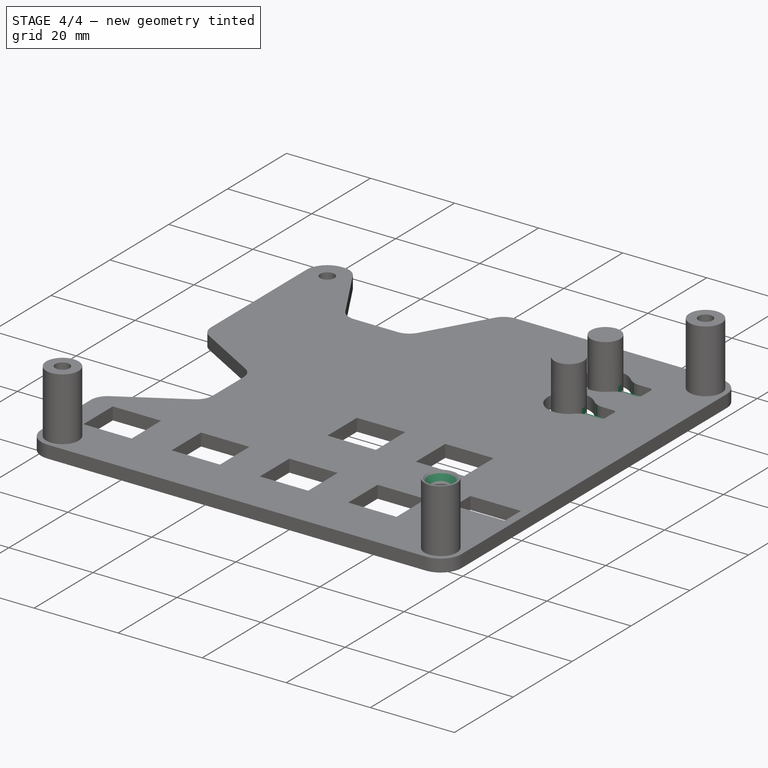
[diagram: stage 4 of 4 — iso view after this stage's code; geometry added in this stage tinted green]
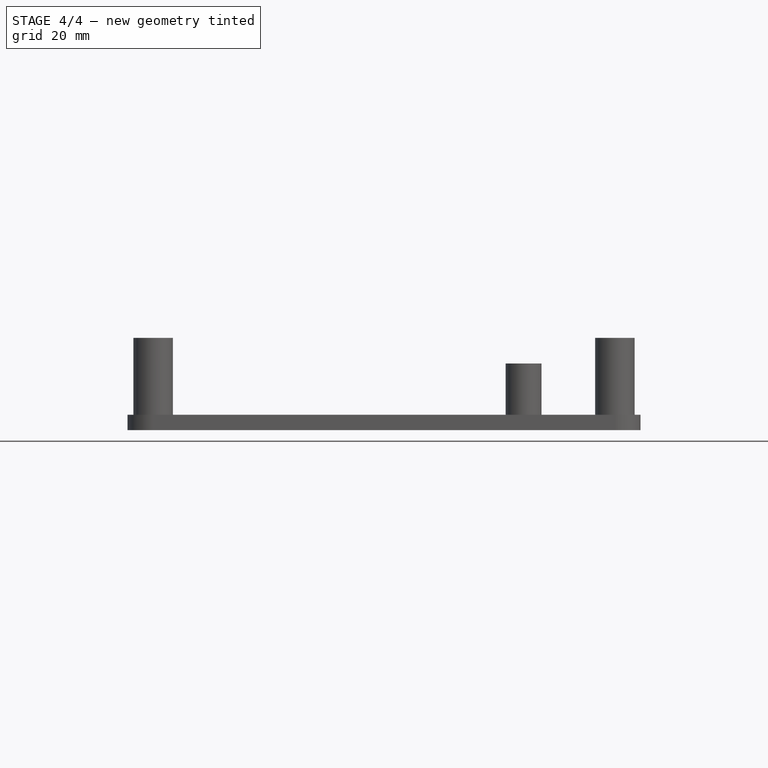
[diagram: stage 4 of 4 — front view after this stage's code; geometry added in this stage tinted green]
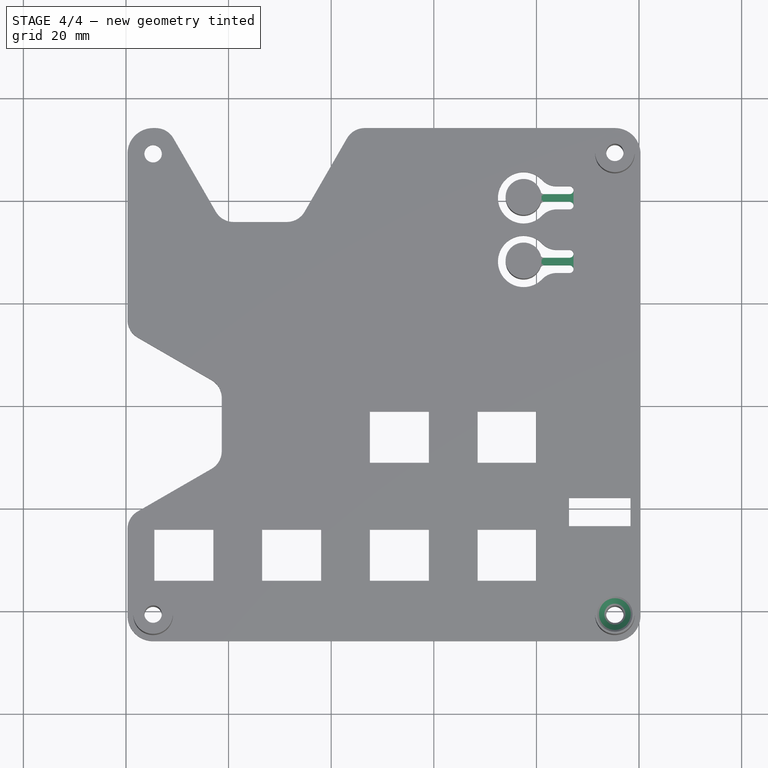
[diagram: stage 4 of 4 — top view after this stage's code; geometry added in this stage tinted green]
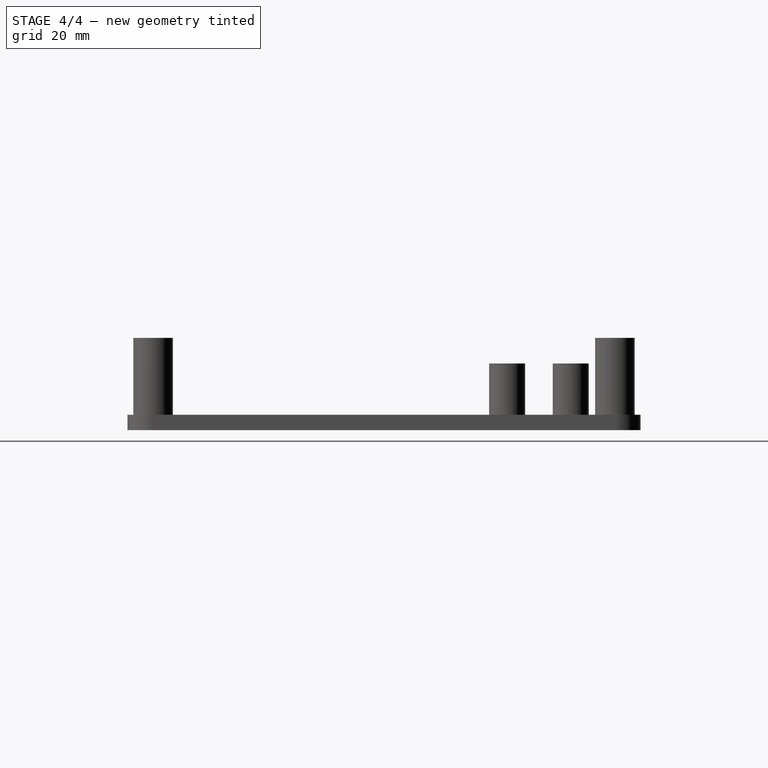
[diagram: stage 4 of 4 — right view after this stage's code; geometry added in this stage tinted green]
FEATURE [PartDesign::Fillet] Fillet
  Base = -> Pocket013 [Edge2,Edge75,Edge634,Edge636,Edge631,Edge632,Edge633,Edge635,Edge665,Edge666,Edge653,Edge652]
  BaseFeature = -> Pocket013
  Placement = pos=(-28.7282,-11.8301,-5.60096) rot=(1,0,0;3.14159rad)
  Radius = 4
  SupportTransform = false
  UseAllEdges = false
FEATURE [PartDesign::Chamfer] Chamfer
  Angle = 45
  Base = -> Fillet [Edge1723]
  BaseFeature = -> Fillet
  ChamferType = 1
  FlipDirection = false
  Placement = pos=(-28.7282,-11.8301,-5.60096) rot=(1,0,0;3.14159rad)
  Size = 1.75
  Size2 = 2
  SupportTransform = false
  UseAllEdges = false
FEATURE [PartDesign::Plane] DatumPlane
  Length = 203.827
  MapMode = 5
  Placement = pos=(-28.7282,-11.8301,-5.60096) rot=(0,0,1;0rad)
  ResizeMode = 0
  Support = -> [Chamfer]
  Width = 214.007
FEATURE [Sketcher::SketchObject] Sketch028
  ExternalGeometry = -> [Chamfer]
  FullyConstrained = true
  MapMode = 5
  Placement = pos=(-28.7282,-11.8301,-5.60096) rot=(0,0,1;0rad)
  Support = -> [DatumPlane]
  sketch-geometry (15):
    g0: LineSegment StartX=155.955 StartY=150.93 StartZ=0 EndX=149.728 EndY=150.93 EndZ=0
    g1: LineSegment StartX=149.728 StartY=150.93 StartZ=0 EndX=149.728 EndY=153.93 EndZ=0
    g2: LineSegment StartX=149.728 StartY=153.93 StartZ=0 EndX=155.955 EndY=153.93 EndZ=0
    g3: LineSegment StartX=155.955 StartY=153.93 StartZ=0 EndX=155.955 EndY=150.93 EndZ=0
    g4: LineSegment StartX=149.728 StartY=141.53 StartZ=0 EndX=155.955 EndY=141.53 EndZ=0
    g5: LineSegment StartX=155.955 StartY=141.53 StartZ=0 EndX=155.955 EndY=138.53 EndZ=0
    g6: LineSegment StartX=155.955 StartY=138.53 StartZ=0 EndX=149.728 EndY=138.53 EndZ=0
    g7: LineSegment StartX=149.728 StartY=138.53 StartZ=0 EndX=149.728 EndY=141.53 EndZ=0
    g8: ArcOfCircle CenterX=146.228 CenterY=152.43 CenterZ=0 NormalX=0 NormalY=0 NormalZ=1 AngleXU=0 Radius=3.5 StartAngle=5.84027 EndAngle=6.6439
    g9: ArcOfCircle CenterX=146.228 CenterY=152.43 CenterZ=0 NormalX=0 NormalY=0 NormalZ=1 AngleXU=0 Radius=3.5 StartAngle=0.360713 EndAngle=0.442911
    g10: LineSegment StartX=149.39 StartY=150.93 StartZ=0 EndX=149.728 EndY=150.93 EndZ=0
    g11: LineSegment StartX=149.39 StartY=153.93 StartZ=0 EndX=149.728 EndY=153.93 EndZ=0
    g12: ArcOfCircle CenterX=146.228 CenterY=140.03 CenterZ=0 NormalX=0 NormalY=0 NormalZ=1 AngleXU=0 Radius=3.5 StartAngle=5.84027 EndAngle=6.7261
    g13: LineSegment StartX=149.39 StartY=141.53 StartZ=0 EndX=149.728 EndY=141.53 EndZ=0
    g14: LineSegment StartX=149.39 StartY=138.53 StartZ=0 EndX=149.728 EndY=138.53 EndZ=0
  constraints (42):
    c: Coincident(g0,g1)
    c: Coincident(g1,g2)
    c: Coincident(g2,g3)
    c: Coincident(g3,g0)
    c: Horizontal(g0)
    c: Horizontal(g2)
    c: Vertical(g1)
    c: Vertical(g3)
    c: Coincident(g4,g5)
    c: Coincident(g5,g6)
    c: Coincident(g6,g7)
    c: Coincident(g7,g4)
    c: Horizontal(g4)
    c: Horizontal(g6)
    c: Vertical(g7)
    c: Tangent(g5,g3)
    c: PointOnObject(g-3,g2)
    c: PointOnObject(g-4,g0)
    c: PointOnObject(g0,g-4)
    c: Coincident(g8,g-6)
    c: Coincident(g8,g-6)
    c: Coincident(g9,g8)
    c: Coincident(g9,g8)
    c: PointOnObject(g-6,g1)
    c: Horizontal(g9,g2)
    c: Horizontal(g8,g0)
    c: Coincident(g10,g8)
    c: Coincident(g10,g0)
    c: Coincident(g11,g9)
    c: Coincident(g11,g2)
    c: PointOnObject(g-5,g6)
    c: Equal(g5,g3)
    c: Equal(g4,g0)
    c: Horizontal(g4,g12)
    c: Horizontal(g12,g6)
    c: Tangent(g12,g7)
    c: Vertical(g12,g12)
    c: Equal(g8,g12)
    c: Coincident(g13,g12)
    c: Coincident(g13,g4)
    c: Coincident(g14,g12)
    c: Coincident(g14,g6)
FEATURE [PartDesign::Pocket] Pocket014
  BaseFeature = -> Chamfer
  Direction = (0,0,-1)
  Length = 1.5
  Length2 = 5
  Placement = pos=(-28.7282,-11.8301,-5.60096) rot=(1,0,0;3.14159rad)
  Profile = -> Sketch028
  ReferenceAxis = -> Sketch028 [N_Axis]
  Type = 0
FEATURE [PartDesign::Body] Body003  label="Body"
  Group = -> [DatumPlane005,Copyb_OTS_0020_index_motherboard1_001_003,Sketch026,Sketch025,Pad005,Pocket010,Sketch024,Pocket009,DatumPlane006,Sketch,Pad,Sketch027,Pad006,ShapeString,ShapeString001,ShapeString002,ShapeString006,Pocket,Pocket011,Pocket012,ShapeString005,Pocket013,Fillet,Chamfer,DatumPlane,Sketch028,Pocket014]
  Origin = -> Origin003
  Tip = -> Pocket014
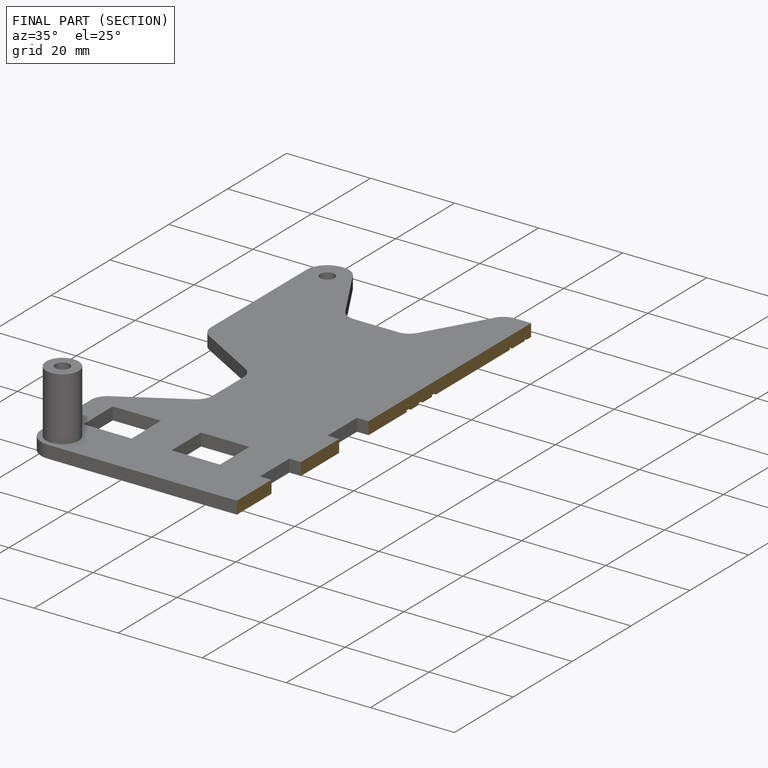
[diagram: finished part — half-section view (interior)]
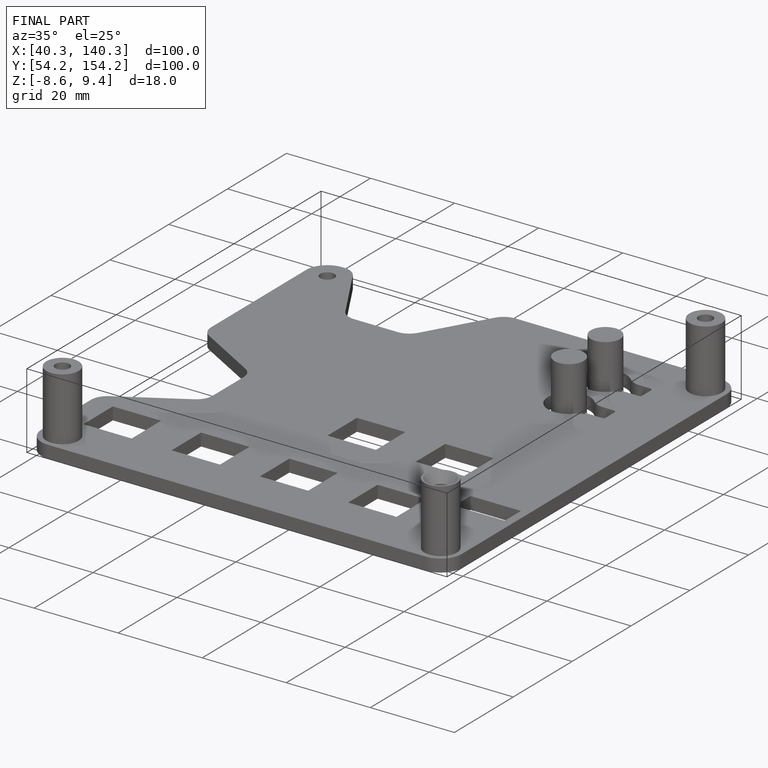
[diagram: finished part — iso view with bounding-box wireframe]
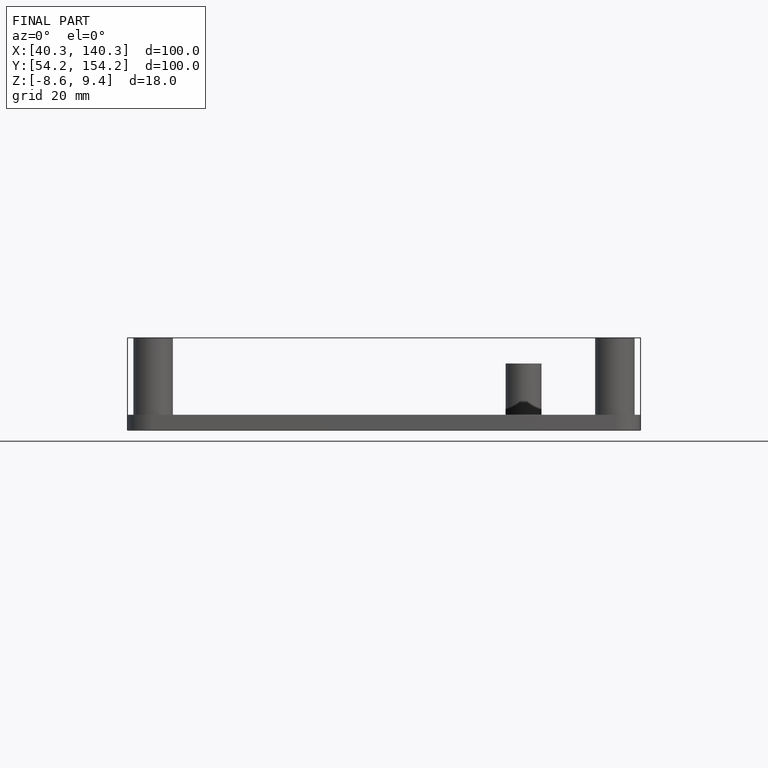
[diagram: finished part — front view with bounding-box wireframe]
